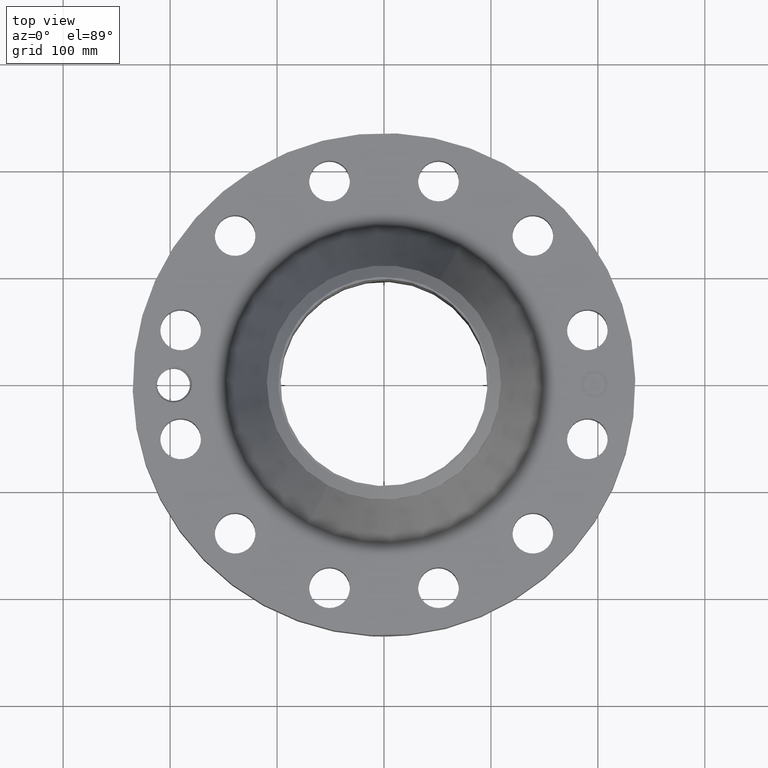
[diagram: clean part render]
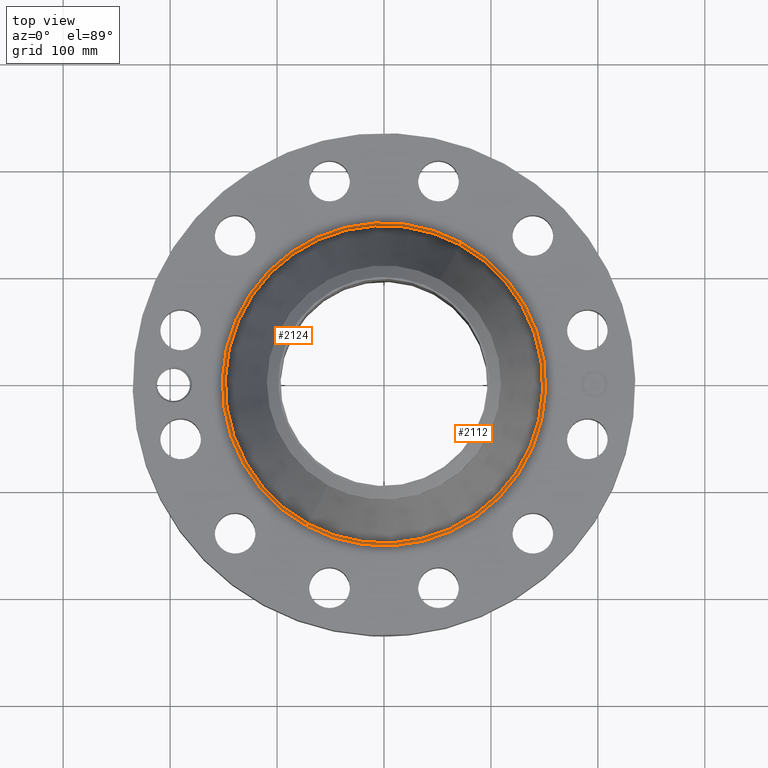
[diagram: same view with one multi-face feature highlighted, each face labeled with its STEP entity id]
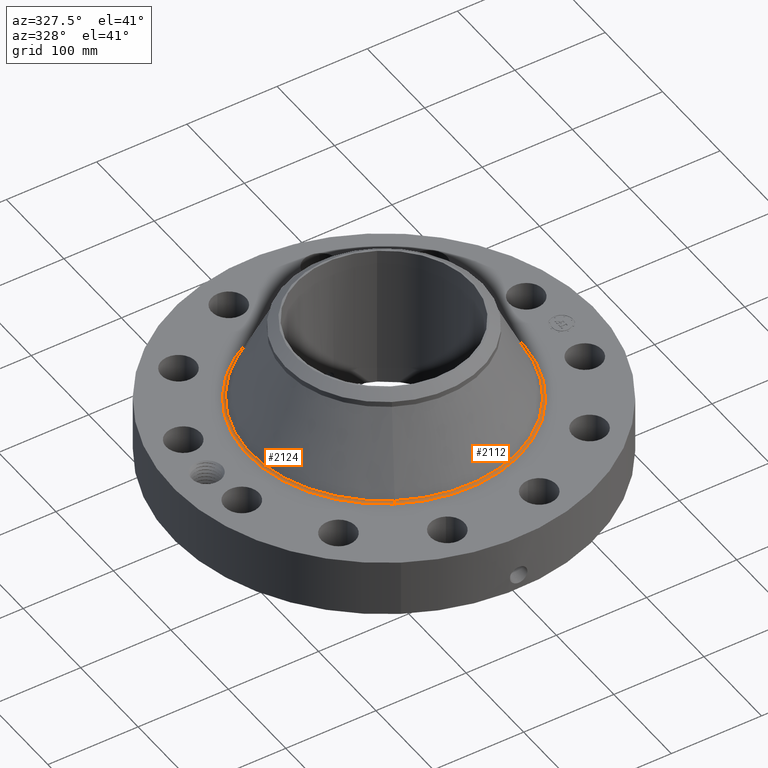
[diagram: same view with one multi-face feature highlighted, each face labeled with its STEP entity id]
A machine part, top view. The highlighted faces form ONE feature: a constant-radius fillet chain: 2 tangent blend faces with common blend radius 3.048 mm. The faces share edges in the B-rep.
A second angle (auxiliary view) of the same feature is appended — it is thin or edge-on in the first view.
Their STEP definitions:
[1] entity #2124 (Torus):
#642=AXIS2_PLACEMENT_3D('Circle Axis2P3D',#640,#641,$) ;
#2085=AXIS2_PLACEMENT_3D('Torus Axis2P3D',#2082,#2083,#2084) ;
#2089=AXIS2_PLACEMENT_3D('Circle Axis2P3D',#2087,#2088,$) ;
#2103=AXIS2_PLACEMENT_3D('Circle Axis2P3D',#2101,#2102,$) ;
#2115=AXIS2_PLACEMENT_3D('Circle Axis2P3D',#2113,#2114,$) ;
#640=CARTESIAN_POINT('Axis2P3D Location',(0.,0.,2.75000000001)) ;
#644=CARTESIAN_POINT('Vertex',(-2.85315152158,-5.22265882843,2.75000000001)) ;
#646=CARTESIAN_POINT('Vertex',(2.85315152158,5.22265882843,2.75000000001)) ;
#2082=CARTESIAN_POINT('Axis2P3D Location',(0.,0.,2.87000000001)) ;
#2087=CARTESIAN_POINT('Axis2P3D Location',(2.85315152158,5.22265882843,2.87000000001)) ;
#2091=CARTESIAN_POINT('Vertex',(2.8010860541,5.12735362948,2.81894996425)) ;
#2098=CARTESIAN_POINT('Vertex',(-2.8010860541,-5.12735362948,2.81894996425)) ;
#2101=CARTESIAN_POINT('Axis2P3D Location',(-2.85315152158,-5.22265882843,2.87000000001)) ;
#2113=CARTESIAN_POINT('Axis2P3D Location',(0.,0.,2.81894996425)) ;
#641=DIRECTION('Axis2P3D Direction',(0.,0.,-0.0393700787402)) ;
#2083=DIRECTION('Axis2P3D Direction',(0.,0.,-0.0393700787402)) ;
#2084=DIRECTION('Axis2P3D XDirection',(-0.0188750212049,-0.0345504945626,0.)) ;
#2088=DIRECTION('Axis2P3D Direction',(-0.0345504945626,0.0188750212049,0.)) ;
#2102=DIRECTION('Axis2P3D Direction',(0.0345504945626,-0.0188750212049,0.)) ;
#2114=DIRECTION('Axis2P3D Direction',(0.,0.,-0.0393700787402)) ;
#2119=ORIENTED_EDGE('',*,*,#648,.F.) ;
#2120=ORIENTED_EDGE('',*,*,#2105,.T.) ;
#2121=ORIENTED_EDGE('',*,*,#2117,.T.) ;
#2122=ORIENTED_EDGE('',*,*,#2093,.F.) ;
#2124=ADVANCED_FACE('PartBody',(#2123),#2086,.F.) ;
#643=CIRCLE('generated circle',#642,5.95118801948) ;
#2090=CIRCLE('generated circle',#2089,0.12) ;
#2104=CIRCLE('generated circle',#2103,0.12) ;
#2116=CIRCLE('generated circle',#2115,5.84258832404) ;
#2086=TOROIDAL_SURFACE('homeo Torus',#2085,5.95118801948,0.12) ;
#648=EDGE_CURVE('',#645,#647,#643,.T.) ;
#2093=EDGE_CURVE('',#647,#2092,#2090,.T.) ;
#2105=EDGE_CURVE('',#645,#2099,#2104,.T.) ;
#2117=EDGE_CURVE('',#2099,#2092,#2116,.T.) ;
#2118=EDGE_LOOP('',(#2119,#2120,#2121,#2122)) ;
#2123=FACE_OUTER_BOUND('',#2118,.T.) ;
#645=VERTEX_POINT('',#644) ;
#647=VERTEX_POINT('',#646) ;
#2092=VERTEX_POINT('',#2091) ;
#2099=VERTEX_POINT('',#2098) ;
[2] entity #2112 (Torus):
#651=AXIS2_PLACEMENT_3D('Circle Axis2P3D',#649,#650,$) ;
#2085=AXIS2_PLACEMENT_3D('Torus Axis2P3D',#2082,#2083,#2084) ;
#2089=AXIS2_PLACEMENT_3D('Circle Axis2P3D',#2087,#2088,$) ;
#2096=AXIS2_PLACEMENT_3D('Circle Axis2P3D',#2094,#2095,$) ;
#2103=AXIS2_PLACEMENT_3D('Circle Axis2P3D',#2101,#2102,$) ;
#644=CARTESIAN_POINT('Vertex',(-2.85315152158,-5.22265882843,2.75000000001)) ;
#646=CARTESIAN_POINT('Vertex',(2.85315152158,5.22265882843,2.75000000001)) ;
#649=CARTESIAN_POINT('Axis2P3D Location',(0.,0.,2.75000000001)) ;
#2082=CARTESIAN_POINT('Axis2P3D Location',(0.,0.,2.87000000001)) ;
#2087=CARTESIAN_POINT('Axis2P3D Location',(2.85315152158,5.22265882843,2.87000000001)) ;
#2091=CARTESIAN_POINT('Vertex',(2.8010860541,5.12735362948,2.81894996425)) ;
#2094=CARTESIAN_POINT('Axis2P3D Location',(0.,0.,2.81894996425)) ;
#2098=CARTESIAN_POINT('Vertex',(-2.8010860541,-5.12735362948,2.81894996425)) ;
#2101=CARTESIAN_POINT('Axis2P3D Location',(-2.85315152158,-5.22265882843,2.87000000001)) ;
#650=DIRECTION('Axis2P3D Direction',(0.,0.,-0.0393700787402)) ;
#2083=DIRECTION('Axis2P3D Direction',(0.,0.,-0.0393700787402)) ;
#2084=DIRECTION('Axis2P3D XDirection',(-0.0188750212049,-0.0345504945626,0.)) ;
#2088=DIRECTION('Axis2P3D Direction',(-0.0345504945626,0.0188750212049,0.)) ;
#2095=DIRECTION('Axis2P3D Direction',(0.,0.,-0.0393700787402)) ;
#2102=DIRECTION('Axis2P3D Direction',(0.0345504945626,-0.0188750212049,0.)) ;
#2107=ORIENTED_EDGE('',*,*,#653,.F.) ;
#2108=ORIENTED_EDGE('',*,*,#2093,.T.) ;
#2109=ORIENTED_EDGE('',*,*,#2100,.T.) ;
#2110=ORIENTED_EDGE('',*,*,#2105,.F.) ;
#2112=ADVANCED_FACE('PartBody',(#2111),#2086,.F.) ;
#652=CIRCLE('generated circle',#651,5.95118801948) ;
#2090=CIRCLE('generated circle',#2089,0.12) ;
#2097=CIRCLE('generated circle',#2096,5.84258832404) ;
#2104=CIRCLE('generated circle',#2103,0.12) ;
#2086=TOROIDAL_SURFACE('homeo Torus',#2085,5.95118801948,0.12) ;
#653=EDGE_CURVE('',#647,#645,#652,.T.) ;
#2093=EDGE_CURVE('',#647,#2092,#2090,.T.) ;
#2100=EDGE_CURVE('',#2092,#2099,#2097,.T.) ;
#2105=EDGE_CURVE('',#645,#2099,#2104,.T.) ;
#2106=EDGE_LOOP('',(#2107,#2108,#2109,#2110)) ;
#2111=FACE_OUTER_BOUND('',#2106,.T.) ;
#645=VERTEX_POINT('',#644) ;
#647=VERTEX_POINT('',#646) ;
#2092=VERTEX_POINT('',#2091) ;
#2099=VERTEX_POINT('',#2098) ;